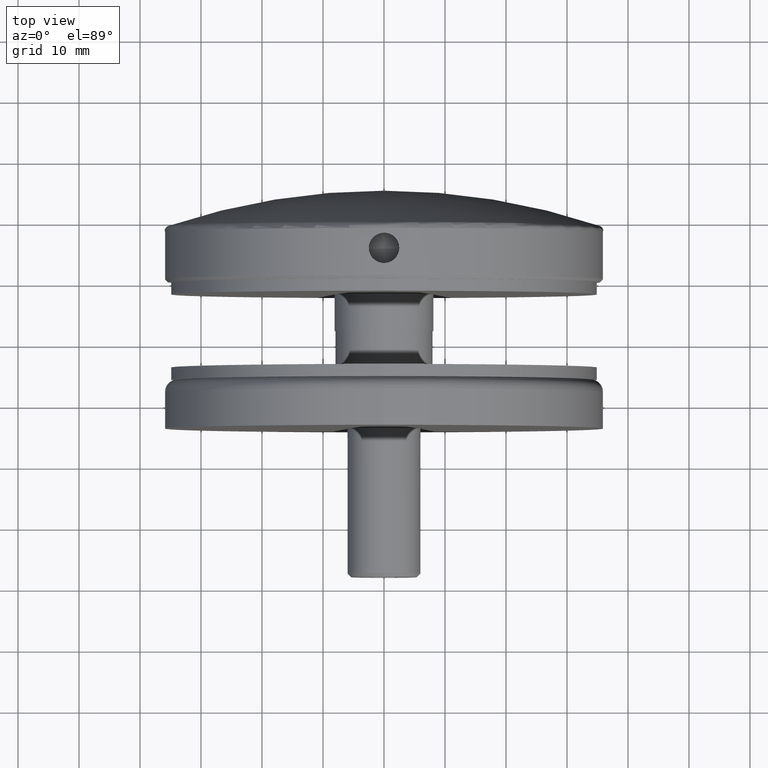
[diagram: clean part render]
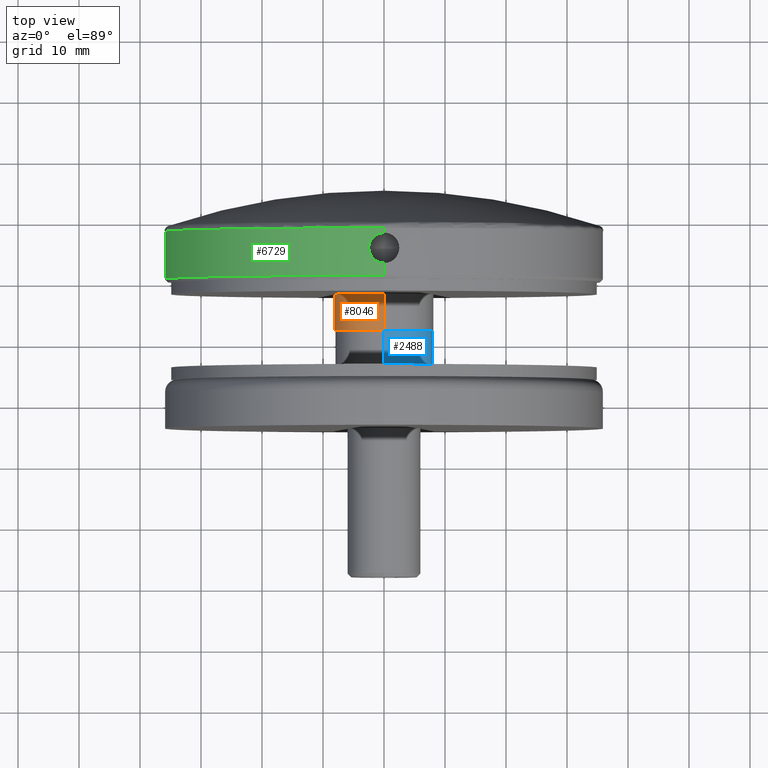
[diagram: same view with three faces highlighted in distinct colors, each labeled with its STEP entity id]
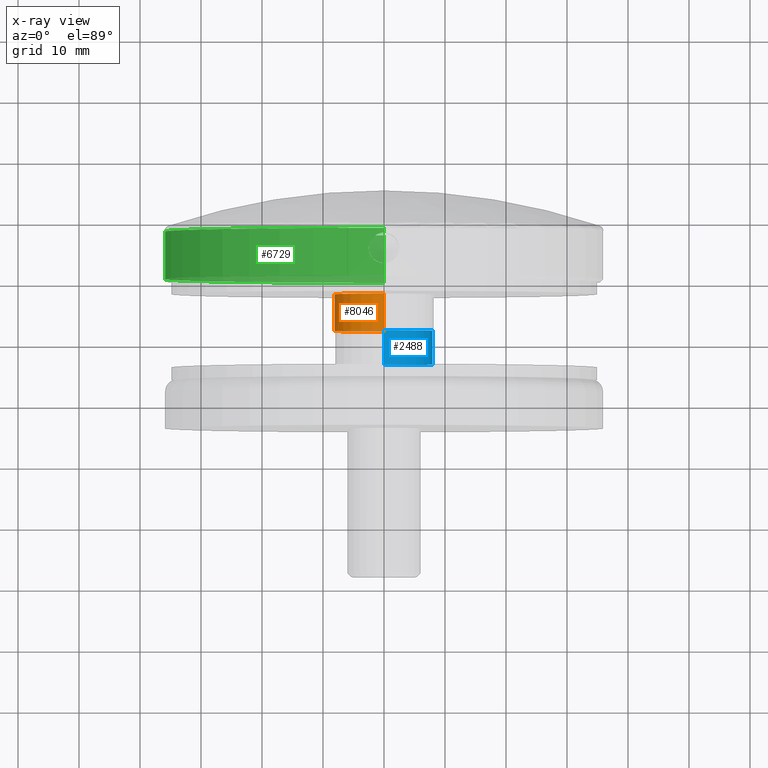
[diagram: x-ray of the same camera — body ghosted, the three highlighted faces saturated]
A machine part, top view with three faces highlighted in distinct colors.
The next image is the same camera in x-ray (body ghosted, the three faces saturated) — at least one of them is partly hidden behind the body in this view.
Their STEP definitions:

[orange] entity #8046 — the highlighted cylindrical surface (partial cylindrical patch) has radius 8.15 mm, axis along (-0, -1, -0).
#289 = EDGE_CURVE ( 'NONE', #12363, #13482, #7972, .T. ) ;
#422 = CIRCLE ( 'NONE', #11311, 8.150000000000000355 ) ;
#979 = DIRECTION ( 'NONE',  ( 0.000000000000000000, 1.000000000000000000, 0.000000000000000000 ) ) ;
#998 = CARTESIAN_POINT ( 'NONE',  ( 0.000000000000000000, 6.000000000000000000, -8.150000000000000355 ) ) ;
#1787 = CARTESIAN_POINT ( 'NONE',  ( 9.980871413050929957E-16, 0.000000000000000000, 8.150000000000000355 ) ) ;
#1840 = FACE_OUTER_BOUND ( 'NONE', #9076, .T. ) ;
#2982 = ORIENTED_EDGE ( 'NONE', *, *, #13351, .F. ) ;
#3318 = CARTESIAN_POINT ( 'NONE',  ( 9.980871413050929957E-16, 6.000000000000000000, 8.150000000000000355 ) ) ;
#3607 = VECTOR ( 'NONE', #13066, 1000.000000000000000 ) ;
#4053 = ORIENTED_EDGE ( 'NONE', *, *, #12153, .T. ) ;
#6026 = CARTESIAN_POINT ( 'NONE',  ( 0.000000000000000000, 6.000000000000000000, 0.000000000000000000 ) ) ;
#6072 = DIRECTION ( 'NONE',  ( 0.000000000000000000, 0.000000000000000000, 1.000000000000000000 ) ) ;
#6170 = CYLINDRICAL_SURFACE ( 'NONE', #12214, 8.150000000000000355 ) ;
#6405 = CARTESIAN_POINT ( 'NONE',  ( 9.980871413050929957E-16, 6.000000000000000000, 8.150000000000000355 ) ) ;
#6430 = DIRECTION ( 'NONE',  ( -0.000000000000000000, -1.000000000000000000, -0.000000000000000000 ) ) ;
#6473 = AXIS2_PLACEMENT_3D ( 'NONE', #6026, #7207, #6072 ) ;
#7187 = CARTESIAN_POINT ( 'NONE',  ( 0.000000000000000000, 6.000000000000000000, 0.000000000000000000 ) ) ;
#7207 = DIRECTION ( 'NONE',  ( 0.000000000000000000, 1.000000000000000000, 0.000000000000000000 ) ) ;
#7560 = CARTESIAN_POINT ( 'NONE',  ( 0.000000000000000000, 0.000000000000000000, 0.000000000000000000 ) ) ;
#7972 = LINE ( 'NONE', #6405, #3607 ) ;
#7982 = VECTOR ( 'NONE', #6430, 1000.000000000000000 ) ;
#8046 = ADVANCED_FACE ( 'NONE', ( #1840 ), #6170, .T. ) ;
#8262 = DIRECTION ( 'NONE',  ( -0.000000000000000000, -1.000000000000000000, -0.000000000000000000 ) ) ;
#8302 = CARTESIAN_POINT ( 'NONE',  ( 0.000000000000000000, 0.000000000000000000, -8.150000000000000355 ) ) ;
#8579 = DIRECTION ( 'NONE',  ( 0.000000000000000000, 0.000000000000000000, 1.000000000000000000 ) ) ;
#8945 = VERTEX_POINT ( 'NONE', #9255 ) ;
#9076 = EDGE_LOOP ( 'NONE', ( #12734, #2982, #4053, #9967 ) ) ;
#9255 = CARTESIAN_POINT ( 'NONE',  ( 0.000000000000000000, 6.000000000000000000, -8.150000000000000355 ) ) ;
#9967 = ORIENTED_EDGE ( 'NONE', *, *, #13088, .T. ) ;
#10302 = DIRECTION ( 'NONE',  ( 0.000000000000000000, 0.000000000000000000, -1.000000000000000000 ) ) ;
#11311 = AXIS2_PLACEMENT_3D ( 'NONE', #7560, #979, #8579 ) ;
#12056 = VERTEX_POINT ( 'NONE', #8302 ) ;
#12153 = EDGE_CURVE ( 'NONE', #8945, #12056, #14372, .T. ) ;
#12214 = AXIS2_PLACEMENT_3D ( 'NONE', #7187, #8262, #10302 ) ;
#12363 = VERTEX_POINT ( 'NONE', #3318 ) ;
#12734 = ORIENTED_EDGE ( 'NONE', *, *, #289, .F. ) ;
#12759 = CIRCLE ( 'NONE', #6473, 8.150000000000000355 ) ;
#13066 = DIRECTION ( 'NONE',  ( -0.000000000000000000, -1.000000000000000000, -0.000000000000000000 ) ) ;
#13088 = EDGE_CURVE ( 'NONE', #12056, #13482, #422, .T. ) ;
#13351 = EDGE_CURVE ( 'NONE', #8945, #12363, #12759, .T. ) ;
#13482 = VERTEX_POINT ( 'NONE', #1787 ) ;
#14372 = LINE ( 'NONE', #998, #7982 ) ;

[blue] entity #2488 — the highlighted cylindrical surface (partial cylindrical patch) has radius 8 mm, axis along (-0, -1, -0).
#548 = LINE ( 'NONE', #12554, #4353 ) ;
#587 = CARTESIAN_POINT ( 'NONE',  ( 0.000000000000000000, 0.000000000000000000, -8.000000000000000000 ) ) ;
#713 = VERTEX_POINT ( 'NONE', #13629 ) ;
#946 = CARTESIAN_POINT ( 'NONE',  ( 0.000000000000000000, 2.499999999999998224, -8.000000000000000000 ) ) ;
#1233 = FACE_OUTER_BOUND ( 'NONE', #9251, .T. ) ;
#1729 = DIRECTION ( 'NONE',  ( 0.000000000000000000, 1.000000000000000000, 0.000000000000000000 ) ) ;
#2453 = ORIENTED_EDGE ( 'NONE', *, *, #4304, .F. ) ;
#2488 = ADVANCED_FACE ( 'NONE', ( #1233 ), #9774, .T. ) ;
#2752 = EDGE_CURVE ( 'NONE', #713, #5232, #12527, .T. ) ;
#3994 = ORIENTED_EDGE ( 'NONE', *, *, #2752, .T. ) ;
#4304 = EDGE_CURVE ( 'NONE', #713, #13515, #11130, .T. ) ;
#4341 = CIRCLE ( 'NONE', #12125, 8.000000000000000000 ) ;
#4353 = VECTOR ( 'NONE', #13758, 1000.000000000000000 ) ;
#5232 = VERTEX_POINT ( 'NONE', #13700 ) ;
#6182 = CARTESIAN_POINT ( 'NONE',  ( 9.797174393178825657E-16, 2.499999999999998224, 8.000000000000000000 ) ) ;
#6398 = DIRECTION ( 'NONE',  ( 0.000000000000000000, 0.000000000000000000, -1.000000000000000000 ) ) ;
#6500 = DIRECTION ( 'NONE',  ( -0.000000000000000000, -1.000000000000000000, -0.000000000000000000 ) ) ;
#7020 = AXIS2_PLACEMENT_3D ( 'NONE', #12535, #9135, #9091 ) ;
#8174 = VECTOR ( 'NONE', #11801, 1000.000000000000000 ) ;
#8534 = AXIS2_PLACEMENT_3D ( 'NONE', #10897, #6500, #6398 ) ;
#9091 = DIRECTION ( 'NONE',  ( 0.000000000000000000, 0.000000000000000000, -1.000000000000000000 ) ) ;
#9135 = DIRECTION ( 'NONE',  ( -0.000000000000000000, -1.000000000000000000, -0.000000000000000000 ) ) ;
#9251 = EDGE_LOOP ( 'NONE', ( #3994, #12326, #12225, #2453 ) ) ;
#9414 = DIRECTION ( 'NONE',  ( 0.000000000000000000, 0.000000000000000000, 1.000000000000000000 ) ) ;
#9774 = CYLINDRICAL_SURFACE ( 'NONE', #7020, 8.000000000000000000 ) ;
#10662 = EDGE_CURVE ( 'NONE', #5232, #12414, #548, .T. ) ;
#10897 = CARTESIAN_POINT ( 'NONE',  ( 0.000000000000000000, 8.000000000000000000, 0.000000000000000000 ) ) ;
#11062 = EDGE_CURVE ( 'NONE', #12414, #13515, #4341, .T. ) ;
#11130 = LINE ( 'NONE', #587, #8174 ) ;
#11801 = DIRECTION ( 'NONE',  ( -0.000000000000000000, -1.000000000000000000, -0.000000000000000000 ) ) ;
#12125 = AXIS2_PLACEMENT_3D ( 'NONE', #12708, #1729, #9414 ) ;
#12225 = ORIENTED_EDGE ( 'NONE', *, *, #11062, .T. ) ;
#12326 = ORIENTED_EDGE ( 'NONE', *, *, #10662, .T. ) ;
#12414 = VERTEX_POINT ( 'NONE', #6182 ) ;
#12527 = CIRCLE ( 'NONE', #8534, 8.000000000000000000 ) ;
#12535 = CARTESIAN_POINT ( 'NONE',  ( 0.000000000000000000, 0.000000000000000000, 0.000000000000000000 ) ) ;
#12554 = CARTESIAN_POINT ( 'NONE',  ( 9.797174393178825657E-16, 0.000000000000000000, 8.000000000000000000 ) ) ;
#12708 = CARTESIAN_POINT ( 'NONE',  ( 0.000000000000000000, 2.499999999999998224, 0.000000000000000000 ) ) ;
#13515 = VERTEX_POINT ( 'NONE', #946 ) ;
#13629 = CARTESIAN_POINT ( 'NONE',  ( 0.000000000000000000, 8.000000000000000000, -8.000000000000000000 ) ) ;
#13700 = CARTESIAN_POINT ( 'NONE',  ( 9.797174393178825657E-16, 8.000000000000000000, 8.000000000000000000 ) ) ;
#13758 = DIRECTION ( 'NONE',  ( -0.000000000000000000, -1.000000000000000000, -0.000000000000000000 ) ) ;

[green] entity #6729 — the highlighted cylindrical surface (partial cylindrical patch) has radius 36 mm, axis along (-0, -1, -0).
#470 = CARTESIAN_POINT ( 'NONE',  ( -2.419747793164520377, 5.649231553429778785, 35.91860028393082871 ) ) ;
#500 = CARTESIAN_POINT ( 'NONE',  ( -0.6472783494093176104, 2.579751689495857203, 35.99453564943973305 ) ) ;
#516 = CARTESIAN_POINT ( 'NONE',  ( -0.8051287940733674597, 7.372465812089726178, 35.99131400276362314 ) ) ;
#667 = EDGE_CURVE ( 'NONE', #9248, #11317, #1701, .T. ) ;
#815 = CARTESIAN_POINT ( 'NONE',  ( -2.499999999999994227, 5.000000000000000000, 35.91308953571107310 ) ) ;
#1323 = EDGE_CURVE ( 'NONE', #9380, #11888, #13986, .T. ) ;
#1448 = DIRECTION ( 'NONE',  ( -0.000000000000000000, -1.000000000000000000, -0.000000000000000000 ) ) ;
#1594 = CARTESIAN_POINT ( 'NONE',  ( -2.499999999999994227, 5.163150028575528516, 35.91308953571108020 ) ) ;
#1670 = CARTESIAN_POINT ( 'NONE',  ( 4.408728477081775166E-15, 2.500000000000005773, 36.00000000000000711 ) ) ;
#1684 = CARTESIAN_POINT ( 'NONE',  ( -1.107782687762404850, 7.247141277551213179, 35.98327018959323453 ) ) ;
#1701 = CIRCLE ( 'NONE', #7167, 36.00000000000000711 ) ;
#1768 = DIRECTION ( 'NONE',  ( -0.000000000000000000, -1.000000000000000000, -0.000000000000000000 ) ) ;
#1804 = CARTESIAN_POINT ( 'NONE',  ( -2.499999999999994671, 4.836766991189271003, 35.91308953571108020 ) ) ;
#2256 = ORIENTED_EDGE ( 'NONE', *, *, #9527, .F. ) ;
#2464 = AXIS2_PLACEMENT_3D ( 'NONE', #3700, #2533, #10227 ) ;
#2533 = DIRECTION ( 'NONE',  ( 0.000000000000000000, 1.000000000000000000, 0.000000000000000000 ) ) ;
#3367 = DIRECTION ( 'NONE',  ( -0.000000000000000000, -1.000000000000000000, -0.000000000000000000 ) ) ;
#3376 = CARTESIAN_POINT ( 'NONE',  ( -2.185113809287800191, 3.742457352036670404, 35.93384031639939735 ) ) ;
#3654 = EDGE_CURVE ( 'NONE', #11317, #6147, #6760, .T. ) ;
#3700 = CARTESIAN_POINT ( 'NONE',  ( 0.000000000000000000, 0.5000000000000281997, 0.000000000000000000 ) ) ;
#3795 = ORIENTED_EDGE ( 'NONE', *, *, #7145, .F. ) ;
#3836 = CARTESIAN_POINT ( 'NONE',  ( -0.3275209780016912209, 2.516192206494024308, 35.99886520280008995 ) ) ;
#4218 = CARTESIAN_POINT ( 'NONE',  ( 0.000000000000000000, 0.5000000000000281997, -36.00000000000000711 ) ) ;
#4510 = ORIENTED_EDGE ( 'NONE', *, *, #3654, .T. ) ;
#4543 = LINE ( 'NONE', #5373, #4886 ) ;
#4616 = VECTOR ( 'NONE', #3367, 1000.000000000000000 ) ;
#4730 = CARTESIAN_POINT ( 'NONE',  ( 0.000000000000000000, 8.283268073071045734, 0.000000000000000000 ) ) ;
#4761 = CARTESIAN_POINT ( 'NONE',  ( -1.254070542842487423, 7.168830743198259192, 35.97840550114879932 ) ) ;
#4886 = VECTOR ( 'NONE', #6602, 1000.000000000000000 ) ;
#5060 = CARTESIAN_POINT ( 'NONE',  ( -1.108909352198453657, 2.753413608996868156, 35.98323540291655576 ) ) ;
#5075 = EDGE_CURVE ( 'NONE', #6147, #7132, #10235, .T. ) ;
#5373 = CARTESIAN_POINT ( 'NONE',  ( 4.408728476930471644E-15, 0.000000000000000000, 36.00000000000000711 ) ) ;
#5599 = CARTESIAN_POINT ( 'NONE',  ( -1.998812980092921299, 3.463417082938111680, 35.94520849288171149 ) ) ;
#5802 = ORIENTED_EDGE ( 'NONE', *, *, #1323, .F. ) ;
#5874 = CARTESIAN_POINT ( 'NONE',  ( 4.408728477081775166E-15, 2.500000000000005773, 36.00000000000000711 ) ) ;
#5892 = CARTESIAN_POINT ( 'NONE',  ( -1.524832347063551197, 6.987814385805631190, 35.96794742051410765 ) ) ;
#5984 = CARTESIAN_POINT ( 'NONE',  ( -1.987876438773238164, 6.524747571039603677, 35.94518830175247359 ) ) ;
#6084 = CARTESIAN_POINT ( 'NONE',  ( -0.3287221358782000391, 7.483678237376104825, 35.99885609484724114 ) ) ;
#6147 = VERTEX_POINT ( 'NONE', #4218 ) ;
#6602 = DIRECTION ( 'NONE',  ( -0.000000000000000000, -1.000000000000000000, -0.000000000000000000 ) ) ;
#6700 = LINE ( 'NONE', #13460, #4616 ) ;
#6729 = ADVANCED_FACE ( 'NONE', ( #9264 ), #8049, .T. ) ;
#6760 = LINE ( 'NONE', #8389, #12324 ) ;
#7014 = CARTESIAN_POINT ( 'NONE',  ( -1.884415708598520034, 6.651122941557929380, 35.95083623039214160 ) ) ;
#7065 = CARTESIAN_POINT ( 'NONE',  ( -2.168844991846189174, 6.254041184556812460, 35.93472312660301782 ) ) ;
#7066 = ORIENTED_EDGE ( 'NONE', *, *, #9748, .F. ) ;
#7068 = CARTESIAN_POINT ( 'NONE',  ( -1.524446482067310260, 3.011836360044914507, 35.96796597644959803 ) ) ;
#7122 = CARTESIAN_POINT ( 'NONE',  ( -0.1630793463087286399, 7.499999999999995559, 36.00000000000001421 ) ) ;
#7132 = VERTEX_POINT ( 'NONE', #13410 ) ;
#7145 = EDGE_CURVE ( 'NONE', #11888, #7132, #6700, .T. ) ;
#7167 = AXIS2_PLACEMENT_3D ( 'NONE', #4730, #1448, #10405 ) ;
#7422 = CARTESIAN_POINT ( 'NONE',  ( -1.252519877405541493, 2.830224506399138029, 35.97846171692764017 ) ) ;
#7825 = DIRECTION ( 'NONE',  ( 0.000000000000000000, 0.000000000000000000, -1.000000000000000000 ) ) ;
#8049 = CYLINDRICAL_SURFACE ( 'NONE', #8553, 36.00000000000000711 ) ;
#8246 = CARTESIAN_POINT ( 'NONE',  ( 0.000000000000000000, 8.283268073071045734, -36.00000000000000711 ) ) ;
#8247 = CARTESIAN_POINT ( 'NONE',  ( -2.483653409535667045, 5.328856707085721567, 35.91423800501164010 ) ) ;
#8265 = CARTESIAN_POINT ( 'NONE',  ( -2.420138976908184247, 4.351955678969921415, 35.91857398349863928 ) ) ;
#8389 = CARTESIAN_POINT ( 'NONE',  ( 0.000000000000000000, 0.000000000000000000, -36.00000000000000711 ) ) ;
#8553 = AXIS2_PLACEMENT_3D ( 'NONE', #11320, #13431, #7825 ) ;
#8659 = CARTESIAN_POINT ( 'NONE',  ( -2.372091182951759691, 4.193949513051933309, 35.92181905166788880 ) ) ;
#9248 = VERTEX_POINT ( 'NONE', #12332 ) ;
#9264 = FACE_OUTER_BOUND ( 'NONE', #9662, .T. ) ;
#9355 = CARTESIAN_POINT ( 'NONE',  ( -2.499999999999994227, 5.000000000000000000, 35.91308953571107310 ) ) ;
#9380 = VERTEX_POINT ( 'NONE', #815 ) ;
#9527 = EDGE_CURVE ( 'NONE', #13842, #9380, #10865, .T. ) ;
#9592 = CARTESIAN_POINT ( 'NONE',  ( -0.1650876944529267032, 2.500000000000005773, 36.00000000000001421 ) ) ;
#9662 = EDGE_LOOP ( 'NONE', ( #7066, #13012, #4510, #10014, #3795, #5802, #2256 ) ) ;
#9748 = EDGE_CURVE ( 'NONE', #9248, #13842, #4543, .T. ) ;
#9958 = CARTESIAN_POINT ( 'NONE',  ( -1.653036434560841039, 3.117433761161920724, 35.96221332562201667 ) ) ;
#9978 = CARTESIAN_POINT ( 'NONE',  ( -2.499999999999994227, 5.000000000000000000, 35.91308953571107310 ) ) ;
#10014 = ORIENTED_EDGE ( 'NONE', *, *, #5075, .T. ) ;
#10227 = DIRECTION ( 'NONE',  ( 0.000000000000000000, 0.000000000000000000, -1.000000000000000000 ) ) ;
#10235 = CIRCLE ( 'NONE', #2464, 36.00000000000000711 ) ;
#10391 = CARTESIAN_POINT ( 'NONE',  ( -2.247082804967383662, 6.107917721200162298, 35.92985621017323439 ) ) ;
#10405 = DIRECTION ( 'NONE',  ( 0.000000000000000000, 0.000000000000000000, -1.000000000000000000 ) ) ;
#10865 = B_SPLINE_CURVE_WITH_KNOTS ( 'NONE', 3,
 ( #13808, #7122, #6084, #13854, #516, #1684, #4761, #5892, #12558, #7014, #5984, #7065, #10391, #13762, #470, #8247, #1594, #9355 ),
 .UNSPECIFIED., .F., .F.,
 ( 4, 2, 2, 2, 2, 2, 2, 2, 4 ),
 ( 0.003910140491838521616, 0.004398684367759714102, 0.004887228243680906588, 0.005375772119602099074, 0.005864315995523292427, 0.006352859871444484913, 0.006841403747365677399, 0.007329947623286869884, 0.007818491499208062370 ),
 .UNSPECIFIED. ) ;
#11317 = VERTEX_POINT ( 'NONE', #8246 ) ;
#11320 = CARTESIAN_POINT ( 'NONE',  ( 0.000000000000000000, 0.000000000000000000, 0.000000000000000000 ) ) ;
#11888 = VERTEX_POINT ( 'NONE', #5874 ) ;
#11973 = CARTESIAN_POINT ( 'NONE',  ( -0.8062953881416805579, 2.627929572990058471, 35.99128780358049084 ) ) ;
#12094 = CARTESIAN_POINT ( 'NONE',  ( 4.408728521376314994E-15, 7.499999999999994671, 36.00000000000000711 ) ) ;
#12324 = VECTOR ( 'NONE', #1768, 1000.000000000000000 ) ;
#12332 = CARTESIAN_POINT ( 'NONE',  ( 4.408728476930471644E-15, 8.283268073071045734, 36.00000000000000711 ) ) ;
#12475 = CARTESIAN_POINT ( 'NONE',  ( -2.484167040333430609, 4.674503110167581355, 35.91420253592353617 ) ) ;
#12558 = CARTESIAN_POINT ( 'NONE',  ( -1.651046309334272877, 6.884482850913071772, 35.96230935732191369 ) ) ;
#13012 = ORIENTED_EDGE ( 'NONE', *, *, #667, .T. ) ;
#13410 = CARTESIAN_POINT ( 'NONE',  ( 4.408728476930471644E-15, 0.5000000000000281997, 36.00000000000000711 ) ) ;
#13431 = DIRECTION ( 'NONE',  ( -0.000000000000000000, -1.000000000000000000, -0.000000000000000000 ) ) ;
#13460 = CARTESIAN_POINT ( 'NONE',  ( 4.408728476930471644E-15, 0.000000000000000000, 36.00000000000000711 ) ) ;
#13762 = CARTESIAN_POINT ( 'NONE',  ( -2.372496711800592184, 5.805060346697580975, 35.92179293644178273 ) ) ;
#13808 = CARTESIAN_POINT ( 'NONE',  ( 4.408728521376314994E-15, 7.499999999999994671, 36.00000000000000711 ) ) ;
#13842 = VERTEX_POINT ( 'NONE', #12094 ) ;
#13854 = CARTESIAN_POINT ( 'NONE',  ( -0.6493068412268883094, 7.419734790295819060, 35.99450095509136816 ) ) ;
#13986 = B_SPLINE_CURVE_WITH_KNOTS ( 'NONE', 3,
 ( #9978, #1804, #12475, #8265, #8659, #3376, #5599, #9958, #7068, #7422, #5060, #11973, #500, #3836, #9592, #1670 ),
 .UNSPECIFIED., .F., .F.,
 ( 4, 2, 2, 2, 2, 2, 2, 4 ),
 ( 0.007818491499208062370, 0.008307283854924721669, 0.008796076210641380969, 0.009773660922074699567, 0.01026245327779135887, 0.01075124563350801817, 0.01124003798922467573, 0.01172883034494133503 ),
 .UNSPECIFIED. ) ;